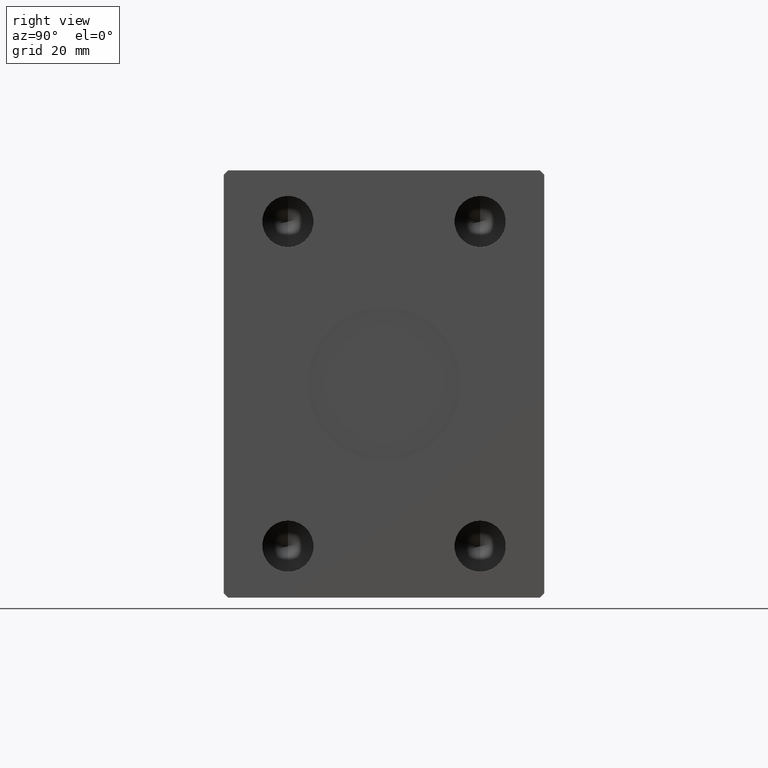
[diagram: clean part render]
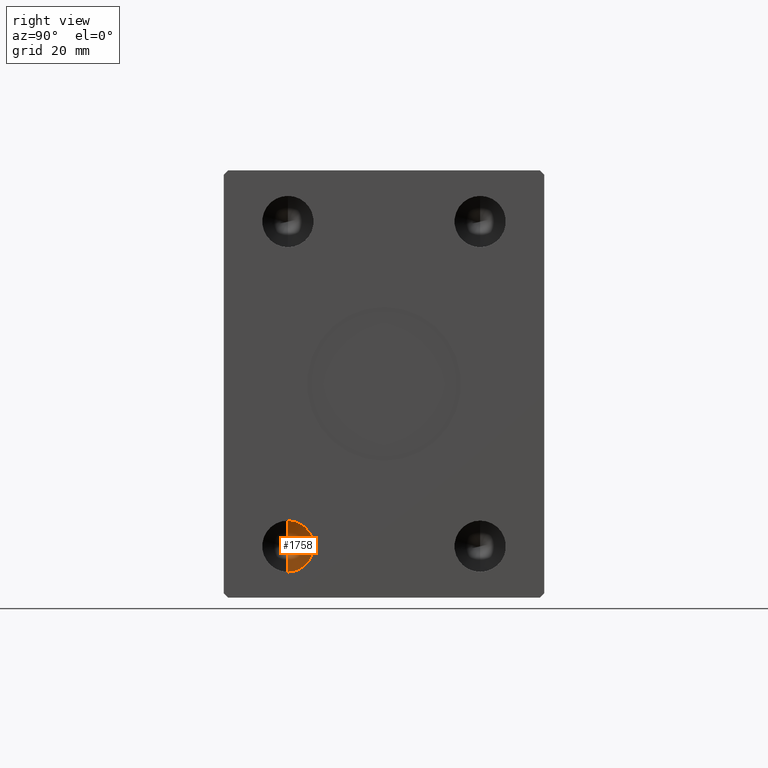
[diagram: same view with one face highlighted and labeled with its STEP entity id]
A machine part, right view. The second image highlights one B-rep face of the part: STEP entity #1758.
In plain terms, the highlighted conical surface has half-angle 59 deg.
Its self-contained STEP definition (entity closure, byte-faithful):
#749 = AXIS2_PLACEMENT_3D ( 'NONE', #42771, #2491, #19174 ) ;
#1758 = ADVANCED_FACE ( 'NONE', ( #12866 ), #17018, .F. ) ;
#1850 = CARTESIAN_POINT ( 'NONE',  ( 84.32999999999998408, -22.50000000000000000, -44.00000000000000000 ) ) ;
#1928 = ORIENTED_EDGE ( 'NONE', *, *, #9743, .F. ) ;
#2491 = DIRECTION ( 'NONE',  ( 1.000000000000000000, -0.000000000000000000, -0.000000000000000000 ) ) ;
#2857 = CARTESIAN_POINT ( 'NONE',  ( 84.32999999999998408, -22.50000000000000000, -38.00000000000000711 ) ) ;
#3082 = ORIENTED_EDGE ( 'NONE', *, *, #30700, .T. ) ;
#3473 = LINE ( 'NONE', #33950, #34165 ) ;
#4134 = EDGE_LOOP ( 'NONE', ( #1928, #3082, #17431 ) ) ;
#5003 = EDGE_CURVE ( 'NONE', #6904, #25849, #5040, .T. ) ;
#5040 = CIRCLE ( 'NONE', #749, 5.999999999999991118 ) ;
#6153 = DIRECTION ( 'NONE',  ( 0.5150380749100547106, 1.049727191138618326E-16, 0.8571673007021120005 ) ) ;
#6855 = DIRECTION ( 'NONE',  ( 0.000000000000000000, 0.000000000000000000, -1.000000000000000000 ) ) ;
#6904 = VERTEX_POINT ( 'NONE', #1850 ) ;
#7431 = DIRECTION ( 'NONE',  ( 0.5150380749100547106, 0.000000000000000000, -0.8571673007021120005 ) ) ;
#9743 = EDGE_CURVE ( 'NONE', #20916, #25849, #3473, .T. ) ;
#9887 = CARTESIAN_POINT ( 'NONE',  ( 84.32999999999998408, -22.50000000000000000, -44.00000000000000000 ) ) ;
#10184 = DIRECTION ( 'NONE',  ( 1.000000000000000000, -0.000000000000000000, -0.000000000000000000 ) ) ;
#12866 = FACE_OUTER_BOUND ( 'NONE', #4134, .T. ) ;
#17018 = CONICAL_SURFACE ( 'NONE', #34757, 5.999999999999991118, 1.029744258676653867 ) ;
#17431 = ORIENTED_EDGE ( 'NONE', *, *, #5003, .T. ) ;
#19174 = DIRECTION ( 'NONE',  ( 0.000000000000000000, 0.000000000000000000, -1.000000000000000000 ) ) ;
#20633 = CARTESIAN_POINT ( 'NONE',  ( 80.72483628583462689, -22.50000000000000711, -38.00000000000000711 ) ) ;
#20916 = VERTEX_POINT ( 'NONE', #20633 ) ;
#25849 = VERTEX_POINT ( 'NONE', #43143 ) ;
#30700 = EDGE_CURVE ( 'NONE', #20916, #6904, #40596, .T. ) ;
#33950 = CARTESIAN_POINT ( 'NONE',  ( 84.32999999999998408, -22.50000000000000000, -32.00000000000001421 ) ) ;
#34165 = VECTOR ( 'NONE', #6153, 1000.000000000000000 ) ;
#34633 = VECTOR ( 'NONE', #7431, 1000.000000000000000 ) ;
#34757 = AXIS2_PLACEMENT_3D ( 'NONE', #2857, #10184, #6855 ) ;
#40596 = LINE ( 'NONE', #9887, #34633 ) ;
#42771 = CARTESIAN_POINT ( 'NONE',  ( 84.32999999999998408, -22.50000000000000000, -38.00000000000000711 ) ) ;
#43143 = CARTESIAN_POINT ( 'NONE',  ( 84.32999999999998408, -22.50000000000000000, -32.00000000000001421 ) ) ;